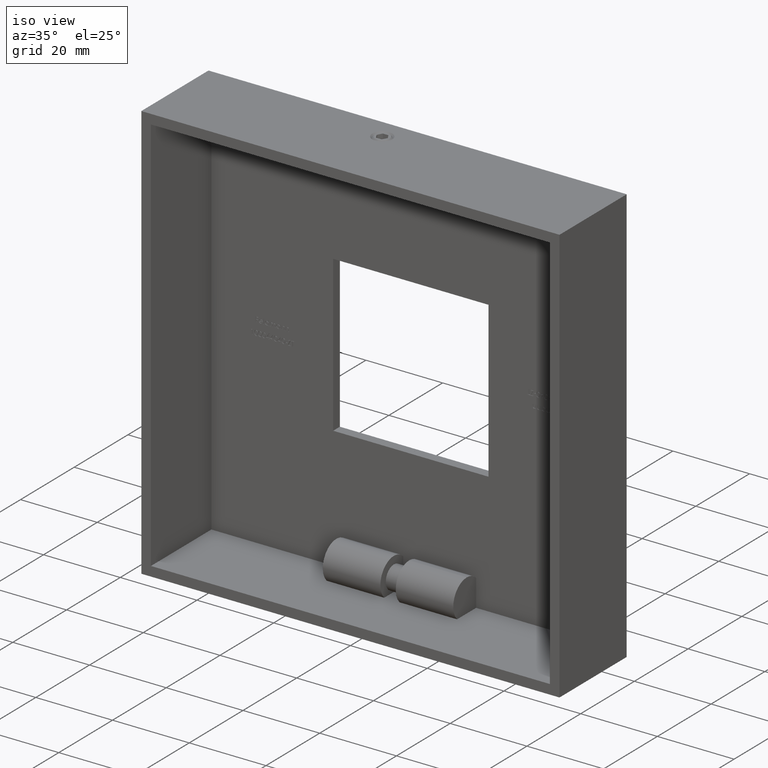
[diagram: clean part render]
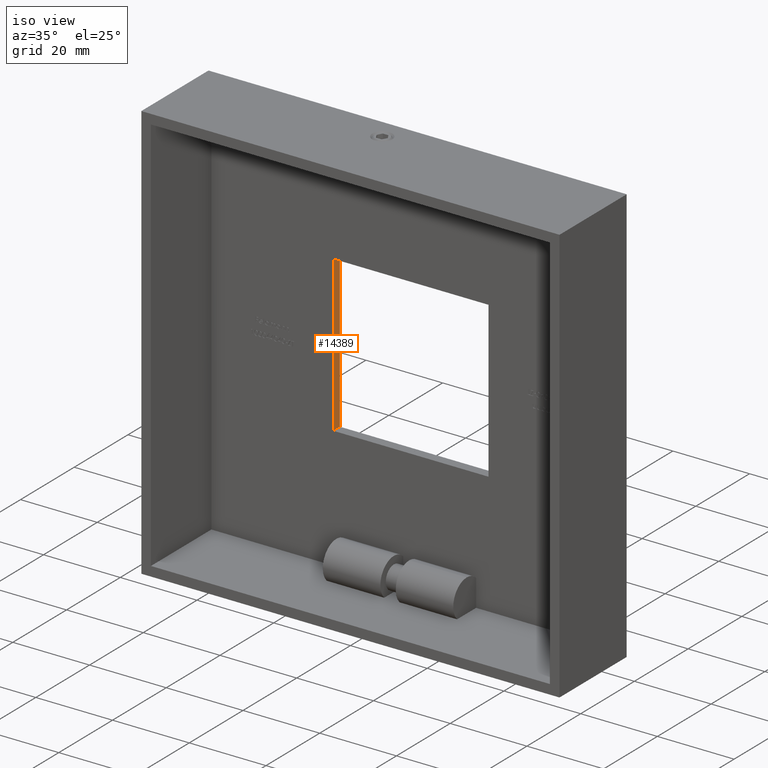
[diagram: same view with one face highlighted and labeled with its STEP entity id]
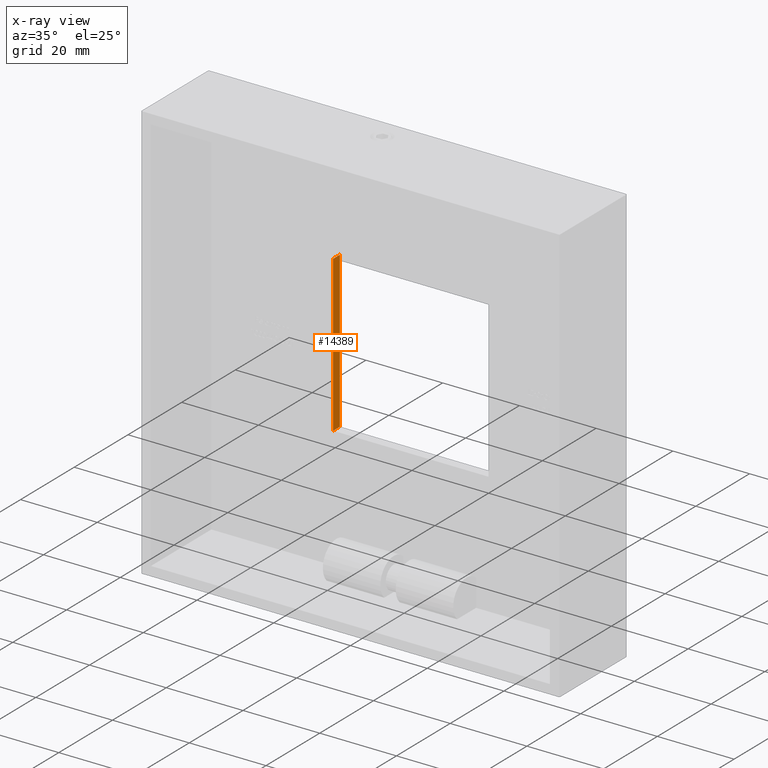
[diagram: x-ray of the same camera — body ghosted, the highlighted face saturated]
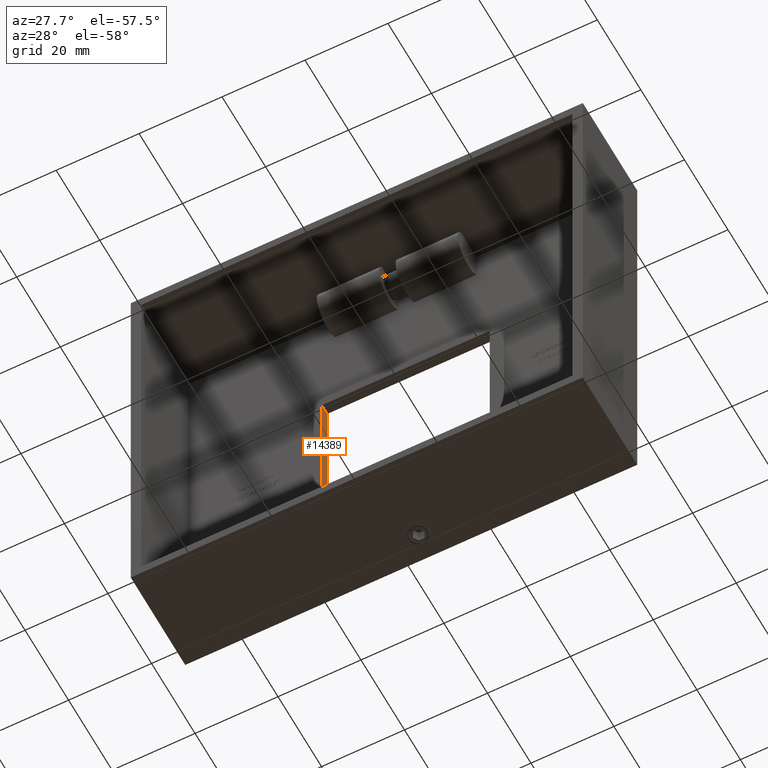
[diagram: same view with one face highlighted and labeled with its STEP entity id]
A machine part, iso view. The second image highlights one B-rep face of the part: STEP entity #14389.
The next image is the same camera in x-ray: the body ghosted, the highlighted face saturated — about 0% of this face is hidden behind the body in this view.
A second angle (auxiliary view) of the same face is appended — the face is thin or edge-on in the first view.
In plain terms, the highlighted planar face has unit normal (-1, 0, 0).
Its self-contained STEP definition (entity closure, byte-faithful):
#68 = CARTESIAN_POINT ( 'NONE',  ( 7.000000000000009800, 25.00000000000000000, 20.25000000000000400 ) ) ;
#71 = LINE ( 'NONE', #13918, #8923 ) ;
#364 = ORIENTED_EDGE ( 'NONE', *, *, #13450, .F. ) ;
#570 = VERTEX_POINT ( 'NONE', #68 ) ;
#650 = VERTEX_POINT ( 'NONE', #4060 ) ;
#2819 = CARTESIAN_POINT ( 'NONE',  ( 7.000000000000009800, 0.0000000000000000000, 20.25000000000000400 ) ) ;
#2877 = EDGE_LOOP ( 'NONE', ( #8400, #7501, #364, #11466 ) ) ;
#2971 = VECTOR ( 'NONE', #8163, 1000.000000000000000 ) ;
#3390 = CARTESIAN_POINT ( 'NONE',  ( 7.000000000000009800, 22.50000000000000400, 20.25000000000000400 ) ) ;
#3694 = EDGE_CURVE ( 'NONE', #650, #570, #14319, .T. ) ;
#4060 = CARTESIAN_POINT ( 'NONE',  ( 7.000000000000009800, 25.00000000000000000, -20.25000000000000400 ) ) ;
#6072 = LINE ( 'NONE', #6565, #12480 ) ;
#6399 = DIRECTION ( 'NONE',  ( -0.0000000000000000000, 0.0000000000000000000, 1.000000000000000000 ) ) ;
#6450 = DIRECTION ( 'NONE',  ( -1.000000000000000000, 0.0000000000000000000, -0.0000000000000000000 ) ) ;
#6565 = CARTESIAN_POINT ( 'NONE',  ( 7.000000000000009800, 22.50000000000000400, 0.0000000000000000000 ) ) ;
#6933 = CARTESIAN_POINT ( 'NONE',  ( 7.000000000000009800, 0.0000000000000000000, -20.25000000000000400 ) ) ;
#7501 = ORIENTED_EDGE ( 'NONE', *, *, #3694, .T. ) ;
#7751 = DIRECTION ( 'NONE',  ( -0.0000000000000000000, 1.000000000000000000, -0.0000000000000000000 ) ) ;
#8163 = DIRECTION ( 'NONE',  ( -0.0000000000000000000, 1.000000000000000000, -0.0000000000000000000 ) ) ;
#8400 = ORIENTED_EDGE ( 'NONE', *, *, #10023, .T. ) ;
#8644 = VERTEX_POINT ( 'NONE', #10214 ) ;
#8673 = DIRECTION ( 'NONE',  ( -0.0000000000000000000, -0.0000000000000000000, 1.000000000000000000 ) ) ;
#8923 = VECTOR ( 'NONE', #7751, 1000.000000000000000 ) ;
#9589 = VERTEX_POINT ( 'NONE', #3390 ) ;
#10023 = EDGE_CURVE ( 'NONE', #8644, #650, #10118, .T. ) ;
#10118 = LINE ( 'NONE', #6933, #2971 ) ;
#10214 = CARTESIAN_POINT ( 'NONE',  ( 7.000000000000009800, 22.50000000000000400, -20.25000000000000400 ) ) ;
#10297 = DIRECTION ( 'NONE',  ( 0.0000000000000000000, 0.0000000000000000000, 1.000000000000000000 ) ) ;
#10638 = AXIS2_PLACEMENT_3D ( 'NONE', #2819, #6450, #6399 ) ;
#10853 = CARTESIAN_POINT ( 'NONE',  ( 7.000000000000009800, 25.00000000000000000, 20.25000000000000400 ) ) ;
#11466 = ORIENTED_EDGE ( 'NONE', *, *, #13068, .F. ) ;
#12480 = VECTOR ( 'NONE', #10297, 1000.000000000000000 ) ;
#13068 = EDGE_CURVE ( 'NONE', #8644, #9589, #6072, .T. ) ;
#13450 = EDGE_CURVE ( 'NONE', #9589, #570, #71, .T. ) ;
#13576 = PLANE ( 'NONE',  #10638 ) ;
#13918 = CARTESIAN_POINT ( 'NONE',  ( 7.000000000000009800, 0.0000000000000000000, 20.25000000000000400 ) ) ;
#13952 = VECTOR ( 'NONE', #8673, 1000.000000000000000 ) ;
#14122 = FACE_OUTER_BOUND ( 'NONE', #2877, .T. ) ;
#14319 = LINE ( 'NONE', #10853, #13952 ) ;
#14389 = ADVANCED_FACE ( 'NONE', ( #14122 ), #13576, .F. ) ;